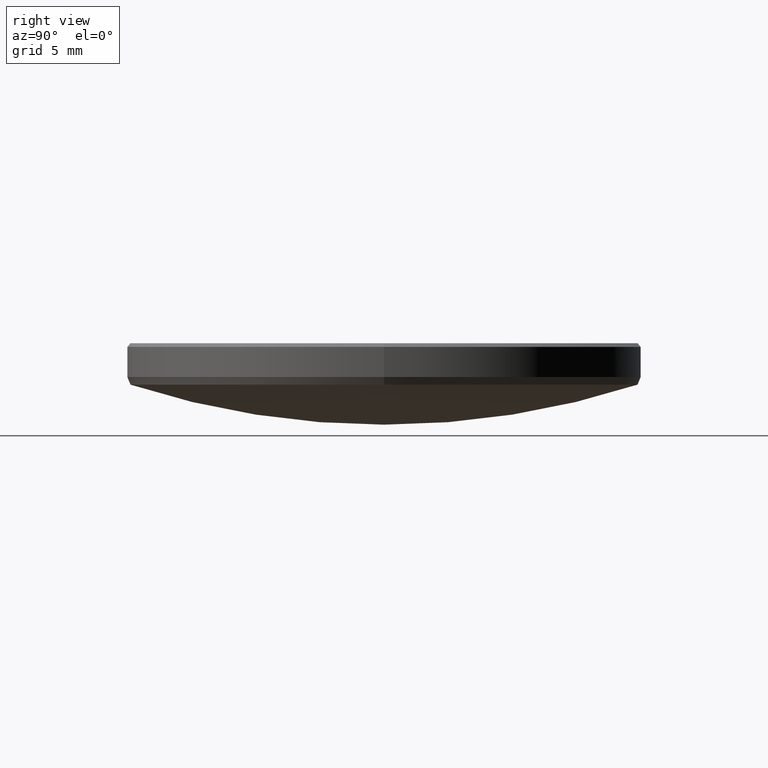
[diagram: clean part render]
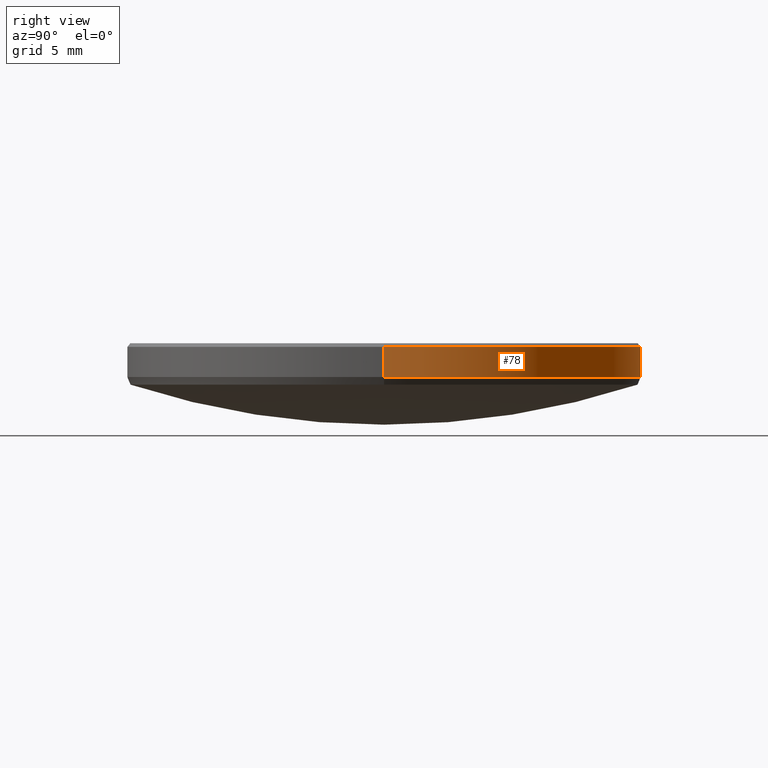
[diagram: same view with one face highlighted and labeled with its STEP entity id]
A machine part, right view. The second image highlights one B-rep face of the part: STEP entity #78.
In plain terms, the highlighted cylindrical surface (partial cylindrical patch) has radius 12.7 mm, axis along (-0, -0, -1).
Its self-contained STEP definition (entity closure, byte-faithful):
#10 = AXIS2_PLACEMENT_3D ( 'NONE', #327, #102, #98 ) ;
#11 = ORIENTED_EDGE ( 'NONE', *, *, #198, .F. ) ;
#12 = VERTEX_POINT ( 'NONE', #330 ) ;
#18 = VECTOR ( 'NONE', #282, 1000.000000000000000 ) ;
#28 = CYLINDRICAL_SURFACE ( 'NONE', #10, 12.69999999999999929 ) ;
#30 = DIRECTION ( 'NONE',  ( -0.000000000000000000, -0.000000000000000000, 1.000000000000000000 ) ) ;
#36 = ORIENTED_EDGE ( 'NONE', *, *, #41, .T. ) ;
#38 = VERTEX_POINT ( 'NONE', #77 ) ;
#41 = EDGE_CURVE ( 'NONE', #12, #38, #156, .T. ) ;
#48 = VECTOR ( 'NONE', #110, 1000.000000000000000 ) ;
#77 = CARTESIAN_POINT ( 'NONE',  ( 12.69999999999999929, 1.555301434917138433E-15, 5.799999999999999822 ) ) ;
#78 = ADVANCED_FACE ( 'NONE', ( #153 ), #28, .T. ) ;
#80 = CARTESIAN_POINT ( 'NONE',  ( 12.69999999999999929, 1.555301434917138433E-15, 4.313967534857077624 ) ) ;
#82 = AXIS2_PLACEMENT_3D ( 'NONE', #200, #175, #154 ) ;
#83 = CARTESIAN_POINT ( 'NONE',  ( -12.69999999999999929, 0.000000000000000000, 10.00000000000000000 ) ) ;
#98 = DIRECTION ( 'NONE',  ( -1.000000000000000000, 0.000000000000000000, 0.000000000000000000 ) ) ;
#102 = DIRECTION ( 'NONE',  ( -0.000000000000000000, -0.000000000000000000, -1.000000000000000000 ) ) ;
#110 = DIRECTION ( 'NONE',  ( -0.000000000000000000, -0.000000000000000000, -1.000000000000000000 ) ) ;
#112 = LINE ( 'NONE', #138, #48 ) ;
#138 = CARTESIAN_POINT ( 'NONE',  ( 12.69999999999999929, 1.555301434917138433E-15, 10.00000000000000000 ) ) ;
#153 = FACE_OUTER_BOUND ( 'NONE', #212, .T. ) ;
#154 = DIRECTION ( 'NONE',  ( 1.000000000000000000, 0.000000000000000000, 0.000000000000000000 ) ) ;
#155 = CARTESIAN_POINT ( 'NONE',  ( 0.000000000000000000, 0.000000000000000000, 4.313967534857077624 ) ) ;
#156 = CIRCLE ( 'NONE', #82, 12.69999999999999929 ) ;
#163 = AXIS2_PLACEMENT_3D ( 'NONE', #155, #30, #260 ) ;
#171 = ORIENTED_EDGE ( 'NONE', *, *, #269, .T. ) ;
#175 = DIRECTION ( 'NONE',  ( 0.000000000000000000, 0.000000000000000000, -1.000000000000000000 ) ) ;
#198 = EDGE_CURVE ( 'NONE', #12, #266, #312, .T. ) ;
#200 = CARTESIAN_POINT ( 'NONE',  ( 0.000000000000000000, 0.000000000000000000, 5.799999999999999822 ) ) ;
#212 = EDGE_LOOP ( 'NONE', ( #36, #171, #318, #11 ) ) ;
#234 = VERTEX_POINT ( 'NONE', #80 ) ;
#260 = DIRECTION ( 'NONE',  ( -1.000000000000000000, 0.000000000000000000, 0.000000000000000000 ) ) ;
#266 = VERTEX_POINT ( 'NONE', #278 ) ;
#268 = EDGE_CURVE ( 'NONE', #234, #266, #299, .T. ) ;
#269 = EDGE_CURVE ( 'NONE', #38, #234, #112, .T. ) ;
#278 = CARTESIAN_POINT ( 'NONE',  ( -12.69999999999999929, 0.000000000000000000, 4.313967534857077624 ) ) ;
#282 = DIRECTION ( 'NONE',  ( -0.000000000000000000, -0.000000000000000000, -1.000000000000000000 ) ) ;
#299 = CIRCLE ( 'NONE', #163, 12.69999999999999929 ) ;
#312 = LINE ( 'NONE', #83, #18 ) ;
#318 = ORIENTED_EDGE ( 'NONE', *, *, #268, .T. ) ;
#327 = CARTESIAN_POINT ( 'NONE',  ( 0.000000000000000000, 0.000000000000000000, 10.00000000000000000 ) ) ;
#330 = CARTESIAN_POINT ( 'NONE',  ( -12.69999999999999929, 0.000000000000000000, 5.799999999999999822 ) ) ;